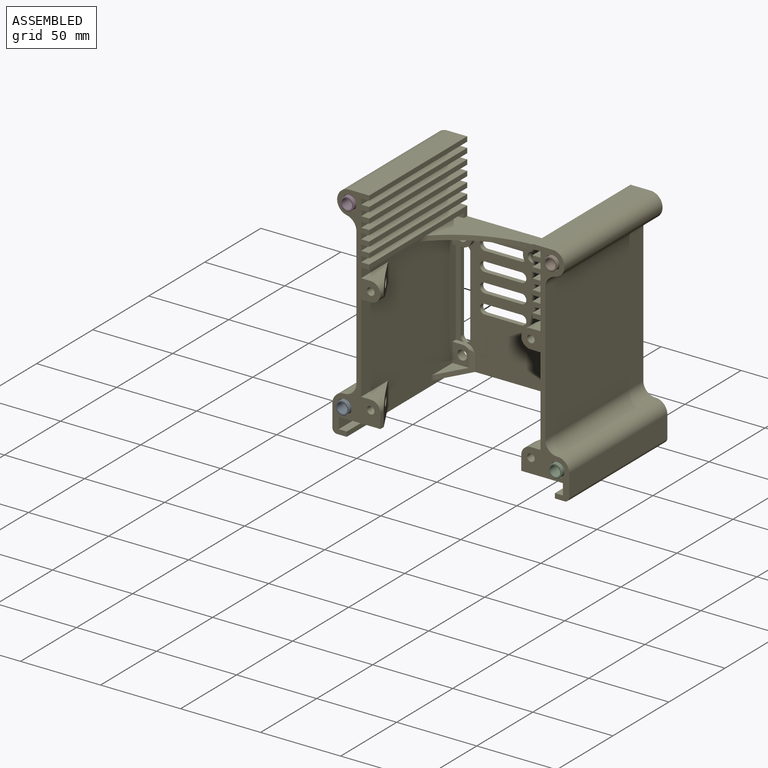
[diagram: assembled view]
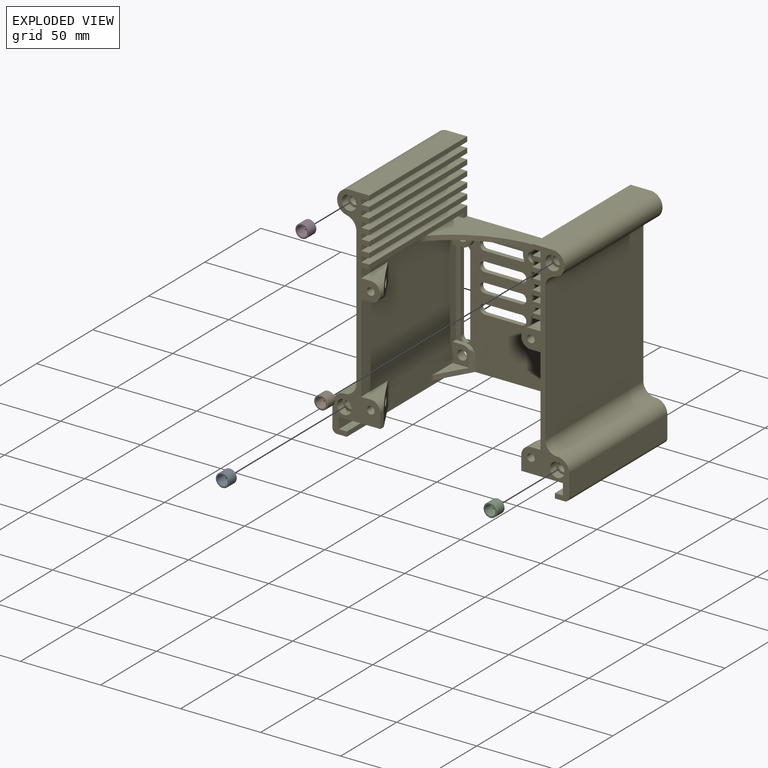
[diagram: exploded view]
GUIDED TOUR — FREECAD ASSEMBLY "Assembly_Flight-Cam-Stack"

This assembly has 5 components, labeled P0..P4 below (a component is one placed body or linked part; the same part can appear more than once), held together by 4 modeled joints. A joint is a constraint between two components; its type names the relative motion it leaves free:
  CYLINDRICAL — leaves both rotation about and translation along the listed axis free.
Axis/direction vectors are unit vectors and 'through' points are millimeter coordinates, both in the assembly's world frame.

MATES
  1. CYLINDRICAL [Cylindrical] "Joint004": P1 <-> P4, axis (0.000, -1.000, 0.000) through (63.50, -86.00, 62.50) mm
  2. CYLINDRICAL [Cylindrical] "Joint006": P2 <-> P4, axis (0.000, -1.000, 0.000) through (66.50, -86.00, -53.50) mm
  3. CYLINDRICAL [Cylindrical] "Joint008": P0 <-> P4, axis (0.000, -1.000, 0.000) through (-66.50, -86.00, -53.50) mm
  4. CYLINDRICAL [Cylindrical] "Joint010": P3 <-> P4, axis (0.000, -1.000, 0.000) through (-63.50, -86.00, 62.50) mm

ASSEMBLY ORDER
  1. P4 — the base component [order verified]
  2. P3 [order verified]
  3. P2 [order verified]
  4. P1 [order verified]
  5. P0 [order verified]
Order-tag legend:
  [order verified] — this step's position reverses a verified removal order: the component was checked to insert without passing through the ones already placed.

Of the 5 components, 5 carry a construction recipe — the FreeCAD feature program (sketches with constraints, then the solid features that consume them) that regenerates the part from scratch, quoted from this document or from the linked companion document it references; the rest are supplied as boundary geometry only. The tour below walks the components in assembly order: each is shown spotlighted twice — in the assembled view, then in the exploded view, where a leader line traces a displaced component back to its assembled socket (components that stay in place when exploded have no leader line; saturated green if recipe-attached, orange if geometry-only; every other component desaturated gray) — followed by its recipe or geometry summary and the mates that hold it.
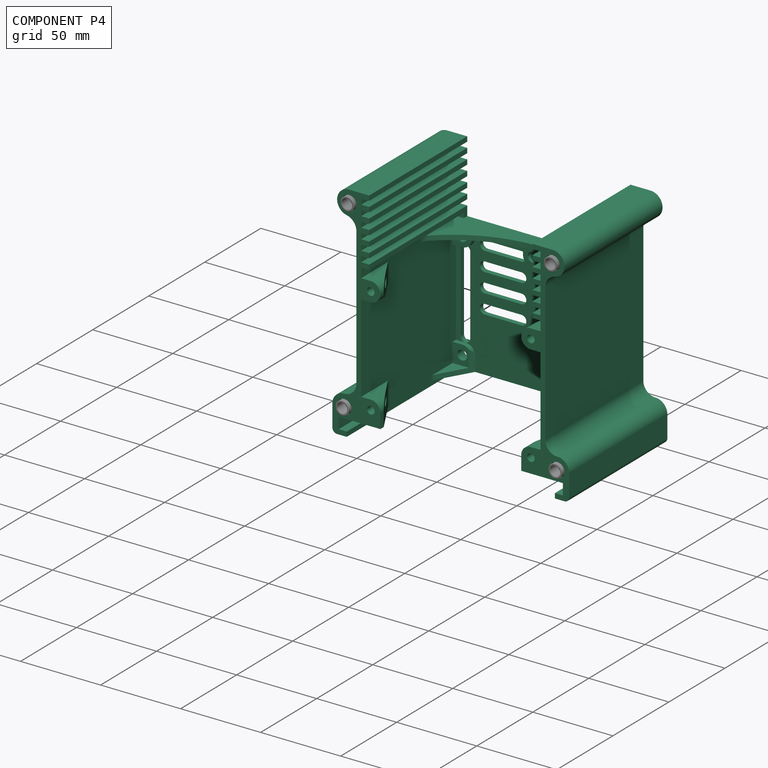
[diagram: component P4 — assembled]
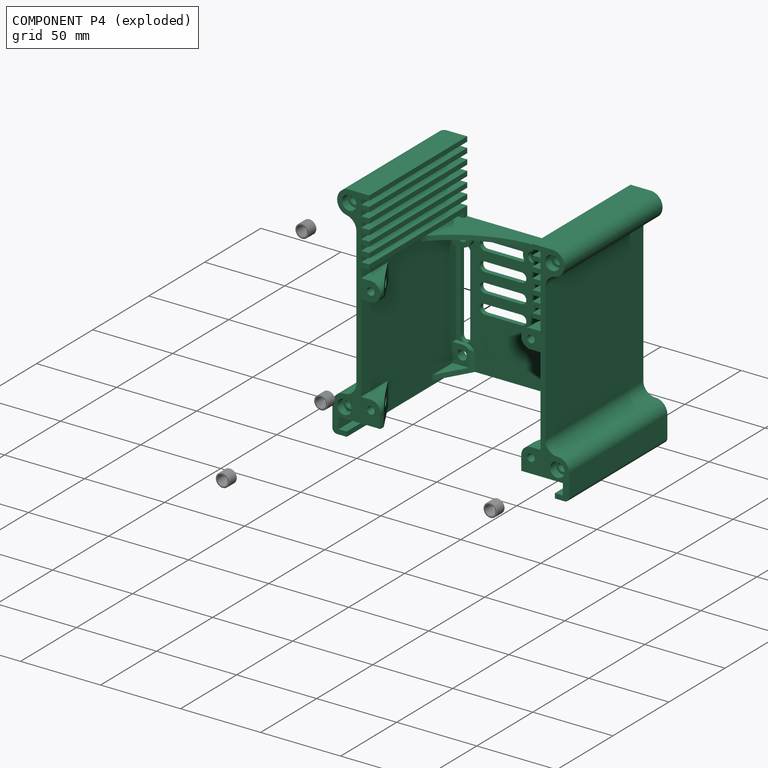
[diagram: component P4 — exploded]
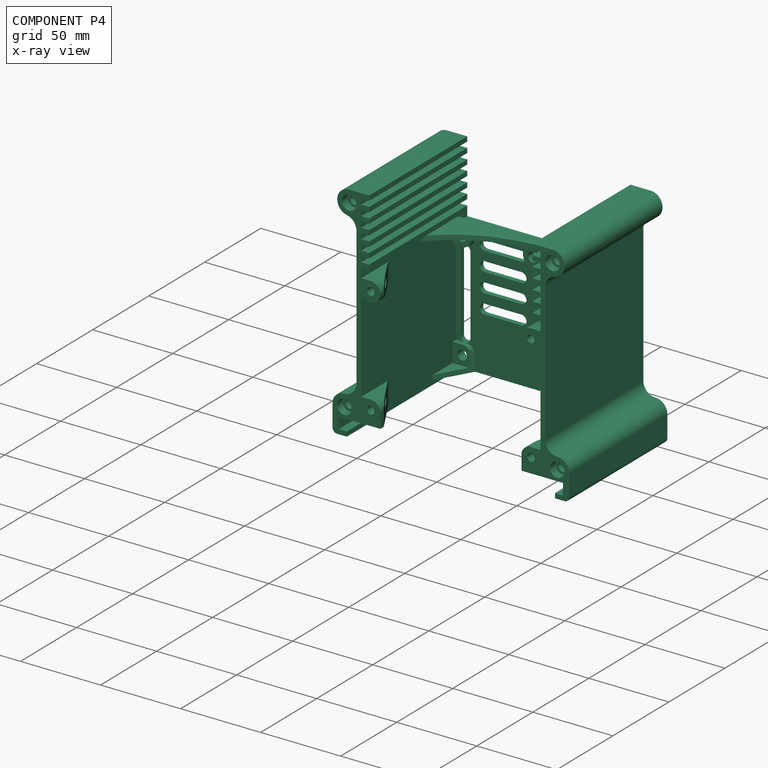
[diagram: component P4 — x-ray view]
COMPONENT P4 — recipe-attached ("Stack_Module", a linked part whose construction recipe lives in a companion FreeCAD document of the same project; that document's serialized recipe follows).
Held by: CYLINDRICAL mate "Joint004" to P1; CYLINDRICAL mate "Joint006" to P2; CYLINDRICAL mate "Joint008" to P0; CYLINDRICAL mate "Joint010" to P3.
Construction recipe (the companion document, serialized — sketch geometry with constraints, then the solid features built on it; lengths are millimeters unless a unit is written):

FCSTD DOCUMENT  (FreeCAD 1.0R39319 (Git))
Label: Stack_Module
License: All rights reserved
LicenseURL: https://en.wikipedia.org/wiki/All_rights_reserved
objects: Sketcher::SketchObject×20, PartDesign::Pocket×15, PartDesign::CoordinateSystem×7, PartDesign::Pad×6, PartDesign::Fillet×5, PartDesign::LinearPattern×2, PartDesign::Mirrored×1, PartDesign::Body×1, App::Part×1
note: 132 computed .brp shape members not serialized (recipe doc carries the construction recipe); baked Part::Feature solids carry a one-line shape summary decoded from their .brp

FEATURE [Sketcher::SketchObject] Sketch
  ArcFitTolerance = 1e-06
  AttachmentSupport = -> [XZ_Plane001]
  FullyConstrained = true
  MakeInternals = false
  MapMode = 5
  Placement = pos=(0,0,0) rot=(1,0,0;1.5708rad)
  sketch-geometry (9):
    g0: LineSegment StartX=0 StartY=-70 StartZ=0 EndX=74 EndY=-70 EndZ=0
    g1: LineSegment StartX=74 StartY=-70 StartZ=0 EndX=74 EndY=-53.5 EndZ=0
    g2: ArcOfCircle CenterX=66.5 CenterY=-53.5 CenterZ=0 NormalX=0 NormalY=0 NormalZ=1 AngleXU=0 Radius=7.5 StartAngle=0 EndAngle=1.5708
    g3: ArcOfCircle CenterX=66.5 CenterY=-38.5 CenterZ=0 NormalX=0 NormalY=0 NormalZ=1 AngleXU=0 Radius=7.5 StartAngle=3.14159 EndAngle=4.71239
    g4: LineSegment StartX=59 StartY=-38.5 StartZ=0 EndX=59 EndY=47.8031 EndZ=0
    g5: ArcOfCircle CenterX=66.5 CenterY=47.8031 CenterZ=0 NormalX=0 NormalY=0 NormalZ=1 AngleXU=0 Radius=7.5 StartAngle=1.77215 EndAngle=3.14159
    g6: ArcOfCircle CenterX=63.5 CenterY=62.5 CenterZ=0 NormalX=0 NormalY=0 NormalZ=1 AngleXU=0 Radius=7.5 StartAngle=4.91375 EndAngle=7.85398
    g7: LineSegment StartX=63.5 StartY=70 StartZ=0 EndX=0 EndY=70 EndZ=0
    g8: LineSegment StartX=0 StartY=70 StartZ=0 EndX=0 EndY=-70 EndZ=0
  constraints (26):
    c: PointOnObject(g0,g-2)
    c: Horizontal(g0)
    c: Coincident(g0,g1)
    c: Vertical(g1)
    c: Tangent(g1,g2) = -1.5708
    c: Tangent(g2,g3) = 1.5708
    c: Tangent(g3,g4) = 1.5708
    c: Tangent(g4,g5) = 1.5708
    c: Tangent(g5,g6) = 1.5708
    c: Tangent(g6,g7) = -1.5708
    c: Coincident(g7,g8)
    c: Coincident(g8,g0)
    c: Vertical(g8)
    c: Horizontal(g7)
    c: Vertical(g4)
    c: DistanceX(g0,g0) = 74
    c: Distance(g7,g0) = 140
    c: Distance(g2,g0) = 16.5
    c: Radius(g2) = 7.5
    c: Distance(g8,g4) = 59
    c: Radius(g6) = 7.5
    c: Distance(g6,g8) = 63.5
    c: Distance(g2,g8) = 66.5
    c: Distance(g-1,g0) = 70
    c: Radius(g3) = 7.5
    c: Radius(g5) = 7.5
FEATURE [PartDesign::Pad] Pad
  Direction = (0,-1,2e-16)
  Length = 87.5
  Length2 = 10
  Placement = pos=(0,0,0) rot=(1,0,0;1.5708rad)
  Profile = -> Sketch
  ReferenceAxis = -> Sketch [N_Axis]
  Refine = true
  Suppressed = false
  Type = 0
FEATURE [Sketcher::SketchObject] Sketch001
  ArcFitTolerance = 1e-06
  AttachmentSupport = -> [Pad]
  ExternalGeometry = -> [Pad]
  FullyConstrained = true
  MakeInternals = false
  MapMode = 5
  Placement = pos=(0,-87.5,0) rot=(1,0,0;1.5708rad)
  sketch-geometry (6):
    g0: LineSegment StartX=0 StartY=-60 StartZ=0 EndX=0 EndY=-70 EndZ=0
    g1: LineSegment StartX=70 StartY=-67 StartZ=0 EndX=70 EndY=-60 EndZ=0
    g2: LineSegment StartX=70 StartY=-60 StartZ=0 EndX=0 EndY=-60 EndZ=0
    g3: LineSegment StartX=70 StartY=-67 StartZ=0 EndX=65 EndY=-67 EndZ=0
    g4: LineSegment StartX=65 StartY=-67 StartZ=0 EndX=65 EndY=-70 EndZ=0
    g5: LineSegment StartX=65 StartY=-70 StartZ=0 EndX=0 EndY=-70 EndZ=0
  constraints (17):
    c: Coincident(g1,g2)
    c: Coincident(g2,g0)
    c: Vertical(g0)
    c: Vertical(g1)
    c: Horizontal(g2)
    c: Distance(g-2,g1) = 70
    c: Coincident(g1,g3)
    c: Horizontal(g3)
    c: Coincident(g3,g4)
    c: PointOnObject(g4,g-3)
    c: Coincident(g4,g5)
    c: Coincident(g5,g-3)
    c: Coincident(g0,g5)
    c: Vertical(g4)
    c: Distance(g3,g2) = 7
    c: Distance(g5,g3) = 3
    c: Distance(g-2,g4) = 65
FEATURE [PartDesign::Pocket] Pocket
  BaseFeature = -> Pad
  Direction = (0,1,-2e-16)
  Length = 5
  Length2 = 5
  Placement = pos=(0,0,0) rot=(1,0,0;1.5708rad)
  Profile = -> Sketch001
  ReferenceAxis = -> Sketch001 [N_Axis]
  Refine = true
  Suppressed = false
  Type = 1
FEATURE [Sketcher::SketchObject] Sketch002
  ArcFitTolerance = 1e-06
  AttachmentSupport = -> [Pocket]
  ExternalGeometry = -> [Pocket]
  FullyConstrained = true
  MakeInternals = false
  MapMode = 5
  Placement = pos=(0,-87.5,0) rot=(1,0,0;1.5708rad)
  sketch-geometry (4):
    g0: LineSegment StartX=0 StartY=28 StartZ=0 EndX=0 EndY=-60 EndZ=0
    g1: LineSegment StartX=0 StartY=-60 StartZ=0 EndX=56 EndY=-60 EndZ=0
    g2: LineSegment StartX=56 StartY=-60 StartZ=0 EndX=56 EndY=28 EndZ=0
    g3: LineSegment StartX=56 StartY=28 StartZ=0 EndX=0 EndY=28 EndZ=0
  constraints (12):
    c: Coincident(g0,g1)
    c: Coincident(g1,g2)
    c: Coincident(g2,g3)
    c: Coincident(g3,g0)
    c: Vertical(g0)
    c: Vertical(g2)
    c: Horizontal(g1)
    c: Horizontal(g3)
    c: PointOnObject(g0,g-2)
    c: PointOnObject(g1,g-3)
    c: Distance(g-4,g2) = 3
    c: Distance(g3,g1) = 88
FEATURE [PartDesign::Pocket] Pocket001
  BaseFeature = -> Pocket
  Direction = (0,1,-2e-16)
  Length = 0
  Length2 = 5
  Offset = -3
  Placement = pos=(0,0,0) rot=(1,0,0;1.5708rad)
  Profile = -> Sketch002
  ReferenceAxis = -> Sketch002 [N_Axis]
  Refine = true
  Suppressed = false
  Type = 3
  UpToFace = -> Pocket [Face2]
FEATURE [Sketcher::SketchObject] Sketch003
  ArcFitTolerance = 1e-06
  AttachmentSupport = -> [Pocket001]
  ExternalGeometry = -> [Pocket001]
  FullyConstrained = true
  MakeInternals = false
  MapMode = 5
  Placement = pos=(0,-87.5,0) rot=(1,0,0;1.5708rad)
  sketch-geometry (4):
    g0: LineSegment StartX=0 StartY=70 StartZ=0 EndX=0 EndY=25 EndZ=0
    g1: LineSegment StartX=0 StartY=25 StartZ=0 EndX=51 EndY=25 EndZ=0
    g2: LineSegment StartX=51 StartY=25 StartZ=0 EndX=51 EndY=70 EndZ=0
    g3: LineSegment StartX=51 StartY=70 StartZ=0 EndX=0 EndY=70 EndZ=0
  constraints (11):
    c: Coincident(g0,g1)
    c: Coincident(g1,g2)
    c: Coincident(g2,g3)
    c: Coincident(g3,g0)
    c: Vertical(g0)
    c: Vertical(g2)
    c: Horizontal(g1)
    c: Horizontal(g3)
    c: Coincident(g0,g-4)
    c: Distance(g2,g-3) = 5
    c: Distance(g1,g3) = 45
FEATURE [PartDesign::Pocket] Pocket002
  BaseFeature = -> Pocket001
  Direction = (0,1,-2e-16)
  Length = 5
  Length2 = 5
  Placement = pos=(0,0,0) rot=(1,0,0;1.5708rad)
  Profile = -> Sketch003
  ReferenceAxis = -> Sketch003 [N_Axis]
  Refine = true
  Suppressed = false
  Type = 1
FEATURE [PartDesign::Pocket] Pocket003
  BaseFeature = -> Pocket002
  Direction = (0,1,-2e-16)
  Length = 5
  Length2 = 5
  Placement = pos=(0,0,0) rot=(1,0,0;1.5708rad)
  Profile = -> Sketch003
  ReferenceAxis = -> Sketch003 [N_Axis]
  Refine = true
  Suppressed = false
  Type = 1
FEATURE [Sketcher::SketchObject] Sketch004
  ArcFitTolerance = 1e-06
  AttachmentSupport = -> [Pocket003]
  ExternalGeometry = -> [Pocket003]
  FullyConstrained = true
  MakeInternals = false
  MapMode = 5
  Placement = pos=(0,-87.5,0) rot=(1,0,0;1.5708rad)
  sketch-geometry (4):
    g0: LineSegment StartX=51 StartY=67 StartZ=0 EndX=51 EndY=63.5 EndZ=0
    g1: LineSegment StartX=51 StartY=63.5 StartZ=0 EndX=56 EndY=63.5 EndZ=0
    g2: LineSegment StartX=56 StartY=63.5 StartZ=0 EndX=56 EndY=67 EndZ=0
    g3: LineSegment StartX=56 StartY=67 StartZ=0 EndX=51 EndY=67 EndZ=0
  constraints (12):
    c: Coincident(g0,g1)
    c: Coincident(g1,g2)
    c: Coincident(g2,g3)
    c: Coincident(g3,g0)
    c: Vertical(g0)
    c: Vertical(g2)
    c: Horizontal(g1)
    c: Horizontal(g3)
    c: PointOnObject(g0,g-4)
    c: Distance(g-3,g3) = 3
    c: Distance(g3,g1) = 3.5
    c: PointOnObject(g1,g-5)
FEATURE [PartDesign::Pocket] Pocket004
  BaseFeature = -> Pocket003
  Direction = (0,1,-2e-16)
  Length = 5
  Length2 = 5
  Placement = pos=(0,0,0) rot=(1,0,0;1.5708rad)
  Profile = -> Sketch004
  ReferenceAxis = -> Sketch004 [N_Axis]
  Refine = true
  Suppressed = false
  Type = 1
FEATURE [PartDesign::LinearPattern] LinearPattern
  BaseFeature = -> Pocket004
  Direction = -> Z_Axis001
  Length = 32.5
  Mode = 1
  Occurrences = 6
  Offset = 6.5
  Originals = -> [Pocket004]
  Placement = pos=(0,0,0) rot=(1,0,0;1.5708rad)
  Refine = true
  Reversed = true
  Suppressed = false
  TransformMode = 0
FEATURE [Sketcher::SketchObject] Sketch005
  ArcFitTolerance = 1e-06
  AttachmentSupport = -> [LinearPattern]
  ExternalGeometry = -> [LinearPattern]
  FullyConstrained = true
  MakeInternals = false
  MapMode = 5
  Placement = pos=(0,1.1e-14,25) rot=(0,0,1;3.14159rad)
  sketch-geometry (4):
    g0: LineSegment StartX=0 StartY=3 StartZ=0 EndX=-56 EndY=3 EndZ=0
    g1: LineSegment StartX=-56 StartY=3 StartZ=0 EndX=-56 EndY=33 EndZ=0
    g2: LineSegment StartX=0 StartY=3 StartZ=0 EndX=-1.42e-14 EndY=9 EndZ=0
    g3: ArcOfCircle CenterX=0 CenterY=86.3333 CenterZ=0 NormalX=0 NormalY=0 NormalZ=1 AngleXU=0 Radius=77.3333 StartAngle=3.90261 EndAngle=4.71239
  constraints (13):
    c: PointOnObject(g0,g-2)
    c: Horizontal(g0)
    c: Coincident(g0,g1)
    c: Vertical(g1)
    c: Coincident(g2,g0)
    c: PointOnObject(g2,g-2)
    c: Coincident(g3,g2)
    c: Coincident(g3,g1)
    c: PointOnObject(g3,g-2)
    c: DistanceY(g2,g2) = 6
    c: DistanceY(g1,g1) = 30
    c: PointOnObject(g0,g-3)
    c: PointOnObject(g1,g-4)
FEATURE [PartDesign::Pad] Pad001
  BaseFeature = -> LinearPattern
  Direction = (0,0,1)
  Length = 3
  Length2 = 10
  Placement = pos=(0,0,0) rot=(1,0,0;1.5708rad)
  Profile = -> Sketch005
  ReferenceAxis = -> Sketch005 [N_Axis]
  Refine = true
  Reversed = true
  Suppressed = false
  Type = 0
FEATURE [Sketcher::SketchObject] Sketch006
  ArcFitTolerance = 1e-06
  AttachmentSupport = -> [Pad001]
  ExternalGeometry = -> [Pad001]
  FullyConstrained = true
  MakeInternals = false
  MapMode = 5
  Placement = pos=(0,-3,7e-16) rot=(1,0,0;1.5708rad)
  sketch-geometry (8):
    g0: LineSegment StartX=56 StartY=22 StartZ=0 EndX=44 EndY=22 EndZ=0
    g1: LineSegment StartX=44 StartY=22 StartZ=0 EndX=44 EndY=10 EndZ=0
    g2: LineSegment StartX=44 StartY=10 StartZ=0 EndX=56 EndY=10 EndZ=0
    g3: LineSegment StartX=56 StartY=10 StartZ=0 EndX=56 EndY=22 EndZ=0
    g4: LineSegment StartX=56 StartY=-45 StartZ=0 EndX=44 EndY=-45 EndZ=0
    g5: LineSegment StartX=44 StartY=-45 StartZ=0 EndX=44 EndY=-57 EndZ=0
    g6: LineSegment StartX=44 StartY=-57 StartZ=0 EndX=56 EndY=-57 EndZ=0
    g7: LineSegment StartX=56 StartY=-57 StartZ=0 EndX=56 EndY=-45 EndZ=0
  constraints (23):
    c: Coincident(g0,g1)
    c: Coincident(g1,g2)
    c: Coincident(g2,g3)
    c: Coincident(g3,g0)
    c: Horizontal(g0)
    c: Horizontal(g2)
    c: Vertical(g1)
    c: Vertical(g3)
    c: Coincident(g4,g5)
    c: Coincident(g5,g6)
    c: Coincident(g6,g7)
    c: Coincident(g7,g4)
    c: Horizontal(g4)
    c: Horizontal(g6)
    c: Vertical(g5)
    c: Vertical(g7)
    c: DistanceX(g0,g0) = 12
    c: Distance(g2,g0) = 12
    c: Distance(g6,g4) = 12
    c: Distance(g7,g5) = 12
    c: Coincident(g0,g-5)
    c: PointOnObject(g4,g-3)
    c: Distance(g-4,g6) = 3
FEATURE [PartDesign::Pad] Pad002
  BaseFeature = -> Pad001
  Direction = (0,-1,2e-16)
  Length = 3
  Length2 = 10
  Placement = pos=(0,0,0) rot=(1,0,0;1.5708rad)
  Profile = -> Sketch006
  ReferenceAxis = -> Sketch006 [N_Axis]
  Refine = true
  Suppressed = false
  Type = 0
FEATURE [PartDesign::Fillet] Fillet
  Base = -> Pad002 [Edge152,Edge151]
  BaseFeature = -> Pad002
  Placement = pos=(0,0,0) rot=(1,0,0;1.5708rad)
  Radius = 6
  Refine = true
  SupportTransform = false
  Suppressed = false
  UseAllEdges = false
FEATURE [Sketcher::SketchObject] Sketch007
  ArcFitTolerance = 1e-06
  AttachmentSupport = -> [Fillet]
  ExternalGeometry = -> [Fillet]
  FullyConstrained = true
  MakeInternals = false
  MapMode = 5
  Placement = pos=(0,-87.5,0) rot=(1,0,0;1.5708rad)
  sketch-geometry (8):
    g0: LineSegment StartX=56 StartY=22 StartZ=0 EndX=56 EndY=10 EndZ=0
    g1: LineSegment StartX=56 StartY=10 StartZ=0 EndX=50 EndY=10 EndZ=0
    g2: ArcOfCircle CenterX=50 CenterY=16 CenterZ=0 NormalX=0 NormalY=0 NormalZ=1 AngleXU=0 Radius=6 StartAngle=1.5708 EndAngle=4.71239
    g3: LineSegment StartX=50 StartY=22 StartZ=0 EndX=56 EndY=22 EndZ=0
    g4: LineSegment StartX=56 StartY=-57 StartZ=0 EndX=56 EndY=-45 EndZ=0
    g5: LineSegment StartX=56 StartY=-45 StartZ=0 EndX=44 EndY=-45 EndZ=0
    g6: LineSegment StartX=44 StartY=-45 StartZ=0 EndX=44 EndY=-57 EndZ=0
    g7: LineSegment StartX=44 StartY=-57 StartZ=0 EndX=56 EndY=-57 EndZ=0
  constraints (17):
    c: Coincident(g0,g1)
    c: Horizontal(g1)
    c: Tangent(g1,g2) = 1.5708
    c: Tangent(g2,g3) = 1.5708
    c: Coincident(g3,g0)
    c: Coincident(g0,g-3)
    c: Coincident(g0,g-5)
    c: Coincident(g-6,g2)
    c: Coincident(g4,g5)
    c: Coincident(g5,g6)
    c: Coincident(g6,g7)
    c: Coincident(g7,g4)
    c: Vertical(g6)
    c: Horizontal(g5)
    c: Coincident(g-9,g4)
    c: Coincident(g6,g-8)
    c: Coincident(g4,g-7)
FEATURE [PartDesign::Pad] Pad003
  BaseFeature = -> Fillet
  Direction = (0,-1,2e-16)
  Length = 25
  Length2 = 10
  Placement = pos=(0,0,0) rot=(1,0,0;1.5708rad)
  Profile = -> Sketch007
  ReferenceAxis = -> Sketch007 [N_Axis]
  Refine = true
  Reversed = true
  Suppressed = false
  Type = 0
FEATURE [Sketcher::SketchObject] Sketch008
  ArcFitTolerance = 1e-06
  AttachmentSupport = -> [Pad003]
  ExternalGeometry = -> [Pad003]
  FullyConstrained = true
  MakeInternals = false
  MapMode = 5
  Placement = pos=(0,-2.64e-14,-60) rot=(1,0,0;3.14159rad)
  sketch-geometry (7):
    g0: LineSegment StartX=56 StartY=87.5 StartZ=0 EndX=44 EndY=87.5 EndZ=0
    g1: LineSegment StartX=44 StartY=87.5 StartZ=0 EndX=44 EndY=84.5 EndZ=0
    g2: LineSegment StartX=44 StartY=84.5 StartZ=0 EndX=56 EndY=63.7154 EndZ=0
    g3: LineSegment StartX=56 StartY=63.7154 StartZ=0 EndX=56 EndY=87.5 EndZ=0
    g4: LineSegment StartX=56 StartY=23.7846 StartZ=0 EndX=44 EndY=3 EndZ=0
    g5: LineSegment StartX=44 StartY=3 StartZ=0 EndX=56 EndY=3 EndZ=0
    g6: LineSegment StartX=56 StartY=3 StartZ=0 EndX=56 EndY=23.7846 EndZ=0
  constraints (18):
    c: Coincident(g-5,g0)
    c: Coincident(g0,g-5)
    c: Coincident(g0,g1)
    c: PointOnObject(g1,g-4)
    c: Coincident(g1,g2)
    c: PointOnObject(g2,g-3)
    c: Coincident(g2,g3)
    c: Coincident(g3,g0)
    c: PointOnObject(g4,g-3)
    c: PointOnObject(g4,g-6)
    c: Coincident(g4,g5)
    c: Coincident(g5,g-6)
    c: Coincident(g5,g6)
    c: Coincident(g6,g4)
    c: Angle(g4,g6) = 0.523599
    c: Angle(g3,g2) = 0.523599
    c: DistanceY(g1,g1) = 3
    c: PointOnObject(g4,g-4)
FEATURE [PartDesign::Pad] Pad004
  BaseFeature = -> Pad003
  Direction = (0,0,-1)
  Length = 10
  Length2 = 10
  Placement = pos=(0,0,0) rot=(1,0,0;1.5708rad)
  Profile = -> Sketch008
  ReferenceAxis = -> Sketch008 [N_Axis]
  Refine = true
  Suppressed = false
  Type = 3
  UpToFace = -> Pad003 [Face14]
FEATURE [Sketcher::SketchObject] Sketch009
  ArcFitTolerance = 1e-06
  AttachmentSupport = -> [Pad004]
  ExternalGeometry = -> [Pad004]
  FullyConstrained = true
  MakeInternals = false
  MapMode = 5
  Placement = pos=(0,-2.51e-14,-57) rot=(1,0,0;3.14159rad)
  sketch-geometry (3):
    g0: LineSegment StartX=44 StartY=3 StartZ=0 EndX=44 EndY=6 EndZ=0
    g1: LineSegment StartX=44 StartY=6 StartZ=0 EndX=45.7321 EndY=6 EndZ=0
    g2: LineSegment StartX=45.7321 StartY=6 StartZ=0 EndX=44 EndY=3 EndZ=0
  constraints (6):
    c: Coincident(g-5,g0)
    c: Coincident(g0,g-4)
    c: Coincident(g0,g1)
    c: Coincident(g1,g-3)
    c: Coincident(g1,g2)
    c: Coincident(g2,g0)
FEATURE [PartDesign::Pocket] Pocket005
  BaseFeature = -> Pad004
  Direction = (0,0,1)
  Length = 0
  Length2 = 5
  Placement = pos=(0,0,0) rot=(1,0,0;1.5708rad)
  Profile = -> Sketch009
  ReferenceAxis = -> Sketch009 [N_Axis]
  Refine = true
  Suppressed = false
  Type = 3
  UpToFace = -> Pad004 [Face3]
FEATURE [Sketcher::SketchObject] Sketch010
  ArcFitTolerance = 1e-06
  AttachmentSupport = -> [Pocket005]
  ExternalGeometry = -> [Pocket005]
  FullyConstrained = true
  MakeInternals = false
  MapMode = 5
  Placement = pos=(0,-2.51e-14,-57) rot=(1,0,0;3.14159rad)
  sketch-geometry (4):
    g0: LineSegment StartX=44 StartY=84.5 StartZ=0 EndX=44 EndY=62.5 EndZ=0
    g1: LineSegment StartX=44 StartY=62.5 StartZ=0 EndX=56 EndY=62.5 EndZ=0
    g2: LineSegment StartX=56 StartY=62.5 StartZ=0 EndX=56 EndY=63.7154 EndZ=0
    g3: LineSegment StartX=56 StartY=63.7154 StartZ=0 EndX=44 EndY=84.5 EndZ=0
  constraints (8):
    c: Coincident(g-6,g0)
    c: Coincident(g0,g-4)
    c: Coincident(g0,g1)
    c: Coincident(g1,g-4)
    c: Coincident(g1,g2)
    c: Coincident(g2,g-6)
    c: Coincident(g2,g3)
    c: Coincident(g3,g0)
FEATURE [PartDesign::Pocket] Pocket006
  BaseFeature = -> Pocket005
  Direction = (0,0,1)
  Length = 0
  Length2 = 5
  Placement = pos=(0,0,0) rot=(1,0,0;1.5708rad)
  Profile = -> Sketch010
  ReferenceAxis = -> Sketch010 [N_Axis]
  Refine = true
  Suppressed = false
  Type = 3
  UpToFace = -> Pocket005 [Face19]
FEATURE [PartDesign::Fillet] Fillet001
  Base = -> Pocket006 [Edge105]
  BaseFeature = -> Pocket006
  Placement = pos=(0,0,0) rot=(1,0,0;1.5708rad)
  Radius = 6
  Refine = true
  SupportTransform = false
  Suppressed = false
  UseAllEdges = false
FEATURE [PartDesign::Fillet] Fillet002
  Base = -> Fillet001 [Edge54,Edge52,Edge67,Edge59]
  BaseFeature = -> Fillet001
  Placement = pos=(0,0,0) rot=(1,0,0;1.5708rad)
  Radius = 6
  Refine = true
  SupportTransform = false
  Suppressed = false
  UseAllEdges = false
FEATURE [Sketcher::SketchObject] Sketch011
  ArcFitTolerance = 1e-06
  AttachmentSupport = -> [Fillet002]
  ExternalGeometry = -> [Fillet002]
  FullyConstrained = true
  MakeInternals = false
  MapMode = 5
  Placement = pos=(0,-3,7e-16) rot=(1,0,0;1.5708rad)
  sketch-geometry (4):
    g0: LineSegment StartX=1.42e-14 StartY=22 StartZ=0 EndX=1.42e-14 EndY=10 EndZ=0
    g1: LineSegment StartX=1.42e-14 StartY=10 StartZ=0 EndX=12 EndY=10 EndZ=0
    g2: LineSegment StartX=12 StartY=10 StartZ=0 EndX=12 EndY=22 EndZ=0
    g3: LineSegment StartX=12 StartY=22 StartZ=0 EndX=1.42e-14 EndY=22 EndZ=0
  constraints (11):
    c: Coincident(g0,g1)
    c: Coincident(g1,g2)
    c: Coincident(g2,g3)
    c: Coincident(g3,g0)
    c: Vertical(g0)
    c: Vertical(g2)
    c: Horizontal(g1)
    c: Horizontal(g3)
    c: Coincident(g0,g-3)
    c: Distance(g0,g2) = 12
    c: PointOnObject(g1,g-4)
FEATURE [PartDesign::Pad] Pad005
  BaseFeature = -> Fillet002
  Direction = (0,-1,2e-16)
  Length = 3
  Length2 = 10
  Placement = pos=(0,0,0) rot=(1,0,0;1.5708rad)
  Profile = -> Sketch011
  ReferenceAxis = -> Sketch011 [N_Axis]
  Refine = true
  Suppressed = false
  Type = 0
FEATURE [PartDesign::Fillet] Fillet003
  Base = -> Pad005 [Edge204]
  BaseFeature = -> Pad005
  Placement = pos=(0,0,0) rot=(1,0,0;1.5708rad)
  Radius = 6
  Refine = true
  SupportTransform = false
  Suppressed = false
  UseAllEdges = false
FEATURE [Sketcher::SketchObject] Sketch012
  ArcFitTolerance = 1e-06
  AttachmentSupport = -> [Fillet003]
  ExternalGeometry = -> [Fillet003]
  FullyConstrained = true
  MakeInternals = false
  MapMode = 5
  Placement = pos=(0,-3,7e-16) rot=(1,0,0;1.5708rad)
  sketch-geometry (5):
    g0: ArcOfCircle CenterX=50 CenterY=7 CenterZ=0 NormalX=0 NormalY=0 NormalZ=1 AngleXU=0 Radius=3 StartAngle=2e-16 EndAngle=3.14159
    g1: ArcOfCircle CenterX=50 CenterY=-42 CenterZ=0 NormalX=0 NormalY=0 NormalZ=1 AngleXU=0 Radius=3 StartAngle=3.14159 EndAngle=6.28319
    g2: LineSegment StartX=53 StartY=7 StartZ=0 EndX=53 EndY=-42 EndZ=0
    g3: LineSegment StartX=47 StartY=7 StartZ=0 EndX=47 EndY=-42 EndZ=0
    g4: LineSegment [constr] StartX=50 StartY=7 StartZ=0 EndX=50 EndY=-42 EndZ=0
  constraints (12):
    c: Tangent(g0,g2) = 1.5708
    c: Tangent(g0,g3) = -1.5708
    c: Tangent(g1,g2) = 1.5708
    c: Tangent(g1,g3) = -1.5708
    c: Equal(g0,g1)
    c: Vertical(g3)
    c: Distance(g2,g3) = 6
    c: Coincident(g4,g0)
    c: Coincident(g4,g1)
    c: PointOnObject(g-3,g4)
    c: Tangent(g0,g-5)
    c: Tangent(g1,g-6)
FEATURE [PartDesign::Pocket] Pocket007
  BaseFeature = -> Fillet003
  Direction = (0,1,-2e-16)
  Length = 5
  Length2 = 5
  Placement = pos=(0,0,0) rot=(1,0,0;1.5708rad)
  Profile = -> Sketch012
  ReferenceAxis = -> Sketch012 [N_Axis]
  Refine = true
  Suppressed = false
  Type = 1
FEATURE [Sketcher::SketchObject] Sketch013
  ArcFitTolerance = 1e-06
  AttachmentSupport = -> [Pocket007]
  ExternalGeometry = -> [Pocket007]
  FullyConstrained = true
  MakeInternals = false
  MapMode = 5
  Placement = pos=(0,-3,7e-16) rot=(1,0,0;1.5708rad)
  sketch-geometry (4):
    g0: ArcOfCircle CenterX=0 CenterY=4 CenterZ=0 NormalX=0 NormalY=0 NormalZ=1 AngleXU=0 Radius=3 StartAngle=7.15e-14 EndAngle=3.14159
    g1: ArcOfCircle CenterX=1.8053e-12 CenterY=-36 CenterZ=0 NormalX=0 NormalY=0 NormalZ=1 AngleXU=0 Radius=3 StartAngle=3.14159 EndAngle=6.28319
    g2: LineSegment StartX=3 StartY=4 StartZ=0 EndX=3 EndY=-36 EndZ=0
    g3: LineSegment StartX=-3 StartY=4 StartZ=0 EndX=-3 EndY=-36 EndZ=0
  constraints (10):
    c: Tangent(g0,g2) = 1.5708
    c: Tangent(g0,g3) = -1.5708
    c: Tangent(g1,g2) = 1.5708
    c: Tangent(g1,g3) = -1.5708
    c: Equal(g0,g1)
    c: Vertical(g3)
    c: PointOnObject(g0,g-2)
    c: Distance(g2,g3) = 6
    c: Distance(g0,g-3) = 21
    c: Distance(g1,g-4) = 24
FEATURE [PartDesign::Pocket] Pocket008
  BaseFeature = -> Pocket007
  Direction = (0,1,-2e-16)
  Length = 5
  Length2 = 5
  Placement = pos=(0,0,0) rot=(1,0,0;1.5708rad)
  Profile = -> Sketch013
  ReferenceAxis = -> Sketch013 [N_Axis]
  Refine = true
  Suppressed = false
  Type = 0
FEATURE [Sketcher::SketchObject] Sketch014
  ArcFitTolerance = 1e-06
  AttachmentSupport = -> [Pocket008]
  ExternalGeometry = -> [Pocket008]
  FullyConstrained = true
  MakeInternals = false
  MapMode = 5
  Placement = pos=(0,-3,7e-16) rot=(1,0,0;1.5708rad)
  sketch-geometry (4):
    g0: ArcOfCircle CenterX=15 CenterY=13 CenterZ=0 NormalX=0 NormalY=0 NormalZ=1 AngleXU=0 Radius=3 StartAngle=1.5708 EndAngle=4.71239
    g1: ArcOfCircle CenterX=38 CenterY=13 CenterZ=0 NormalX=0 NormalY=0 NormalZ=1 AngleXU=0 Radius=3 StartAngle=4.71239 EndAngle=7.85398
    g2: LineSegment StartX=15 StartY=16 StartZ=0 EndX=38 EndY=16 EndZ=0
    g3: LineSegment StartX=15 StartY=10 StartZ=0 EndX=38 EndY=10 EndZ=0
  constraints (10):
    c: Tangent(g0,g2) = 1.5708
    c: Tangent(g0,g3) = -1.5708
    c: Tangent(g1,g2) = 1.5708
    c: Tangent(g1,g3) = -1.5708
    c: Equal(g0,g1)
    c: Horizontal(g3)
    c: Distance(g3,g2) = 6
    c: Distance(g-5,g2) = 9
    c: Distance(g0,g-3) = 9
    c: Distance(g1,g-4) = 6
FEATURE [PartDesign::Pocket] Pocket009
  BaseFeature = -> Pocket008
  Direction = (0,1,-2e-16)
  Length = 5
  Length2 = 5
  Placement = pos=(0,0,0) rot=(1,0,0;1.5708rad)
  Profile = -> Sketch014
  ReferenceAxis = -> Sketch014 [N_Axis]
  Refine = true
  Suppressed = false
  Type = 1
FEATURE [PartDesign::LinearPattern] LinearPattern001
  BaseFeature = -> Pocket009
  Direction = -> Z_Axis001
  Length = 36
  Mode = 1
  Occurrences = 4
  Offset = 12
  Originals = -> [Pocket009]
  Placement = pos=(0,0,0) rot=(1,0,0;1.5708rad)
  Refine = true
  Reversed = true
  Suppressed = false
  TransformMode = 0
FEATURE [Sketcher::SketchObject] Sketch015
  ArcFitTolerance = 1e-06
  AttachmentSupport = -> [LinearPattern001]
  ExternalGeometry = -> [LinearPattern001]
  FullyConstrained = true
  MakeInternals = false
  MapMode = 5
  Placement = pos=(0,-6,1.4e-15) rot=(1,0,0;1.5708rad)
  sketch-geometry (3):
    g0: Circle CenterX=6 CenterY=16 CenterZ=0 NormalX=0 NormalY=0 NormalZ=1 AngleXU=0 Radius=3
    g1: Circle CenterX=50 CenterY=16 CenterZ=0 NormalX=0 NormalY=0 NormalZ=1 AngleXU=0 Radius=3
    g2: Circle CenterX=50 CenterY=-51 CenterZ=0 NormalX=0 NormalY=0 NormalZ=1 AngleXU=0 Radius=3
  constraints (6):
    c: Coincident(g0,g-3)
    c: Coincident(g1,g-4)
    c: Coincident(g2,g-5)
    c: Diameter(g0) = 6
    c: Diameter(g1) = 6
    c: Diameter(g2) = 6
FEATURE [PartDesign::Pocket] Pocket010
  BaseFeature = -> LinearPattern001
  Direction = (0,1,-2e-16)
  Length = 5
  Length2 = 5
  Placement = pos=(0,0,0) rot=(1,0,0;1.5708rad)
  Profile = -> Sketch015
  ReferenceAxis = -> Sketch015 [N_Axis]
  Refine = true
  Suppressed = false
  Type = 1
FEATURE [Sketcher::SketchObject] Sketch016
  ArcFitTolerance = 1e-06
  AttachmentSupport = -> [Pocket010]
  ExternalGeometry = -> [Pocket010]
  FullyConstrained = true
  MakeInternals = false
  MapMode = 5
  Placement = pos=(0,-87.5,3.76e-14) rot=(1,0,0;1.5708rad)
  sketch-geometry (2):
    g0: Circle CenterX=50 CenterY=16 CenterZ=0 NormalX=0 NormalY=0 NormalZ=1 AngleXU=0 Radius=2.35
    g1: Circle CenterX=50 CenterY=-51 CenterZ=0 NormalX=0 NormalY=0 NormalZ=1 AngleXU=0 Radius=2.35
  constraints (4):
    c: Coincident(g0,g-3)
    c: Coincident(g1,g-4)
    c: Diameter(g0) = 4.7
    c: Diameter(g1) = 4.7
FEATURE [PartDesign::Pocket] Pocket011
  BaseFeature = -> Pocket010
  Direction = (0,1,-2e-16)
  Length = 5
  Length2 = 5
  Placement = pos=(0,0,0) rot=(1,0,0;1.5708rad)
  Profile = -> Sketch016
  ReferenceAxis = -> Sketch016 [N_Axis]
  Refine = true
  Suppressed = false
  Type = 1
FEATURE [PartDesign::Fillet] Fillet004
  Base = -> Pocket011 [Edge263]
  BaseFeature = -> Pocket011
  Placement = pos=(0,0,0) rot=(1,0,0;1.5708rad)
  Radius = 3
  Refine = true
  SupportTransform = false
  Suppressed = false
  UseAllEdges = false
FEATURE [Sketcher::SketchObject] Sketch017
  ArcFitTolerance = 1e-06
  AttachmentSupport = -> [Fillet004]
  ExternalGeometry = -> [Fillet004]
  FullyConstrained = true
  MakeInternals = false
  MapMode = 5
  Placement = pos=(0,-87.5,3.76e-14) rot=(1,0,0;1.5708rad)
  sketch-geometry (2):
    g0: Circle CenterX=63.5 CenterY=62.5 CenterZ=0 NormalX=0 NormalY=0 NormalZ=1 AngleXU=0 Radius=3
    g1: Circle CenterX=66.5 CenterY=-53.5 CenterZ=0 NormalX=0 NormalY=0 NormalZ=1 AngleXU=0 Radius=3
  constraints (4):
    c: Coincident(g0,g-3)
    c: Coincident(g1,g-4)
    c: Diameter(g0) = 6
    c: Diameter(g1) = 6
FEATURE [PartDesign::Pocket] Pocket012
  BaseFeature = -> Fillet004
  Direction = (0,1,-2e-16)
  Length = 5
  Length2 = 5
  Placement = pos=(0,0,0) rot=(1,0,0;1.5708rad)
  Profile = -> Sketch017
  ReferenceAxis = -> Sketch017 [N_Axis]
  Refine = true
  Suppressed = false
  Type = 1
FEATURE [Sketcher::SketchObject] Sketch018
  ArcFitTolerance = 1e-06
  AttachmentSupport = -> [Pocket012]
  ExternalGeometry = -> [Pocket012]
  FullyConstrained = true
  MakeInternals = false
  MapMode = 5
  Placement = pos=(0,-87.5,3.76e-14) rot=(1,0,0;1.5708rad)
  sketch-geometry (2):
    g0: Circle CenterX=66.5 CenterY=-53.5 CenterZ=0 NormalX=0 NormalY=0 NormalZ=1 AngleXU=0 Radius=4.5
    g1: Circle CenterX=63.5 CenterY=62.5 CenterZ=0 NormalX=0 NormalY=0 NormalZ=1 AngleXU=0 Radius=4.5
  constraints (4):
    c: Coincident(g0,g-4)
    c: Coincident(g1,g-3)
    c: Diameter(g1) = 9
    c: Diameter(g0) = 9
FEATURE [PartDesign::Pocket] Pocket013
  BaseFeature = -> Pocket012
  Direction = (0,1,-2e-16)
  Length = 5
  Length2 = 5
  Placement = pos=(0,0,0) rot=(1,0,0;1.5708rad)
  Profile = -> Sketch018
  ReferenceAxis = -> Sketch018 [N_Axis]
  Refine = true
  Suppressed = false
  Type = 0
FEATURE [Sketcher::SketchObject] Sketch019
  ArcFitTolerance = 1e-06
  AttachmentSupport = -> [Pocket013]
  ExternalGeometry = -> [Pocket013]
  FullyConstrained = true
  MakeInternals = false
  MapMode = 5
  Placement = pos=(0,-3e-16,0) rot=(-1,0,0;1.5708rad)
  sketch-geometry (2):
    g0: Circle CenterX=66.5 CenterY=53.5 CenterZ=0 NormalX=0 NormalY=0 NormalZ=1 AngleXU=0 Radius=4.5
    g1: Circle CenterX=63.5 CenterY=-62.5 CenterZ=0 NormalX=0 NormalY=0 NormalZ=1 AngleXU=0 Radius=4.5
  constraints (4):
    c: Coincident(g0,g-3)
    c: Coincident(g1,g-4)
    c: Diameter(g0) = 9
    c: Diameter(g1) = 9
FEATURE [PartDesign::Pocket] Pocket014
  BaseFeature = -> Pocket013
  Direction = (0,-1,-2e-16)
  Length = 5
  Length2 = 5
  Placement = pos=(0,0,0) rot=(1,0,0;1.5708rad)
  Profile = -> Sketch019
  ReferenceAxis = -> Sketch019 [N_Axis]
  Refine = true
  Suppressed = false
  Type = 0
FEATURE [PartDesign::Mirrored] Mirrored
  BaseFeature = -> Pocket014
  MirrorPlane = -> YZ_Plane001
  Placement = pos=(0,0,0) rot=(1,0,0;1.5708rad)
  Refine = true
  Suppressed = false
  TransformMode = 1
FEATURE [PartDesign::Body] Body  label="Stack_Module001"
  AllowCompound = false
  Group = -> [Sketch,Pad,Sketch001,Pocket,Sketch002,Pocket001,Sketch003,Pocket002,Pocket003,Sketch004,Pocket004,LinearPattern,Sketch005,Pad001,Sketch006,Pad002,Fillet,Sketch007,Pad003,Sketch008,Pad004,Sketch009,Pocket005,Sketch010,Pocket006,Fillet001,Fillet002,Sketch011,Pad005,Fillet003,Sketch012,Pocket007,Sketch013,Pocket008,Sketch014,Pocket009,LinearPattern001,Sketch015,Pocket010,Sketch016,Pocket011,+8 more]
  Origin = -> Origin001
  Tip = -> Mirrored
FEATURE [PartDesign::CoordinateSystem] stack_att_up
  AttacherType = Attacher::AttachEngine3D
  AttachmentSupport = -> [Mirrored]
  MapMode = 11
  Placement = pos=(-63.5,-87.5,62.5) rot=(0.57735,0.57735,0.57735;4.18879rad)
FEATURE [PartDesign::CoordinateSystem] stack_att_low
  AttacherType = Attacher::AttachEngine3D
  AttachmentSupport = -> [Mirrored]
  MapMode = 11
  Placement = pos=(-63.5,1.41e-14,62.5) rot=(0.57735,0.57735,-0.57735;2.0944rad)
FEATURE [PartDesign::CoordinateSystem] spacer_att_1
  AttacherType = Attacher::AttachEngine3D
  AttachmentSupport = -> [Mirrored]
  MapMode = 11
  Placement = pos=(66.5,-82.5,-53.5) rot=(0.57735,-0.57735,0.57735;2.0944rad)
FEATURE [PartDesign::CoordinateSystem] spacer_att_2
  AttacherType = Attacher::AttachEngine3D
  AttachmentSupport = -> [Mirrored]
  MapMode = 11
  Placement = pos=(63.5,-82.5,62.5) rot=(0.57735,-0.57735,0.57735;2.0944rad)
FEATURE [PartDesign::CoordinateSystem] spacer_att_3
  AttacherType = Attacher::AttachEngine3D
  AttachmentSupport = -> [Mirrored]
  MapMode = 11
  Placement = pos=(-66.5,-82.5,-53.5) rot=(0.57735,0.57735,0.57735;4.18879rad)
FEATURE [PartDesign::CoordinateSystem] spacer_att_4
  AttacherType = Attacher::AttachEngine3D
  AttachmentSupport = -> [Mirrored]
  MapMode = 11
  Placement = pos=(-63.5,-82.5,62.5) rot=(0.57735,0.57735,0.57735;4.18879rad)
FEATURE [PartDesign::CoordinateSystem] screen_ref  label="screen_reference"
  AttacherType = Attacher::AttachEngine3D
  AttachmentOffset = pos=(4,-50,0) rot=(0,0,1;0rad)
  AttachmentSupport = -> [Mirrored]
  MapMode = 45
  Placement = pos=(-50,-3,-19.9856) rot=(0.57735,0.57735,0.57735;4.18879rad)
FEATURE [App::Part] Part  label="Stack_Module"
  Group = -> [Body,stack_att_up,stack_att_low,spacer_att_1,spacer_att_2,spacer_att_3,spacer_att_4,screen_ref]
  Origin = -> Origin
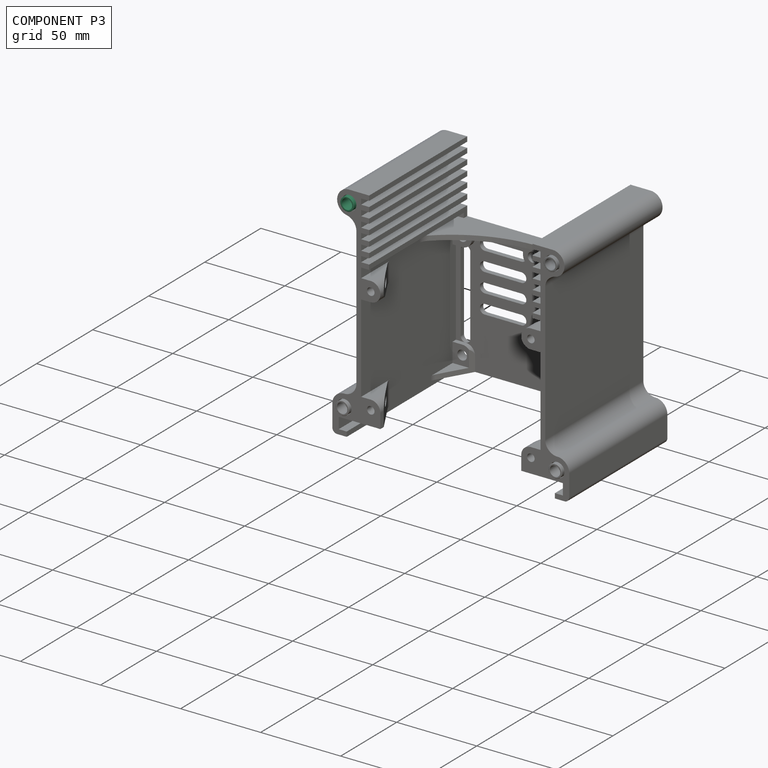
[diagram: component P3 — assembled]
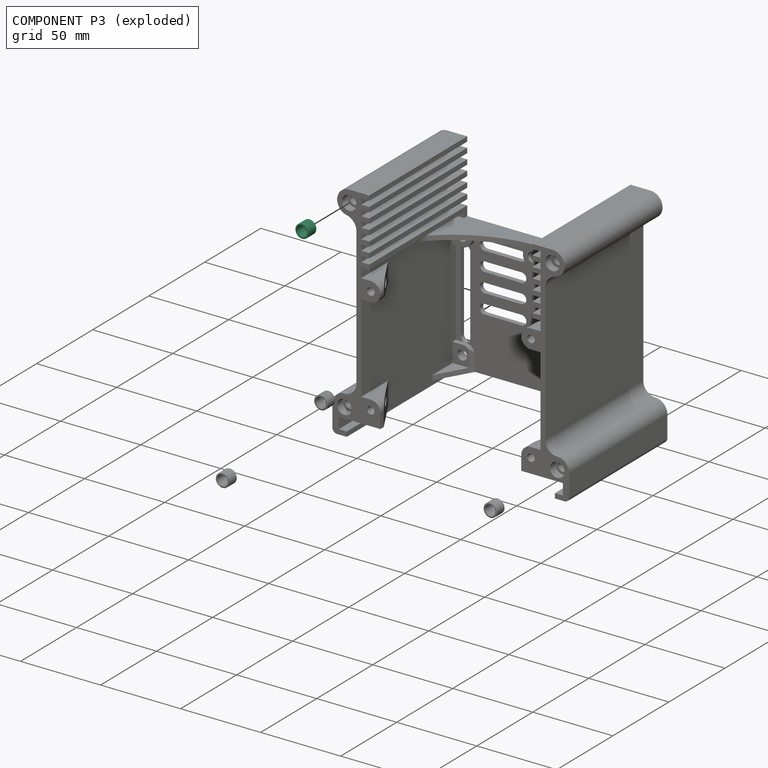
[diagram: component P3 — exploded]
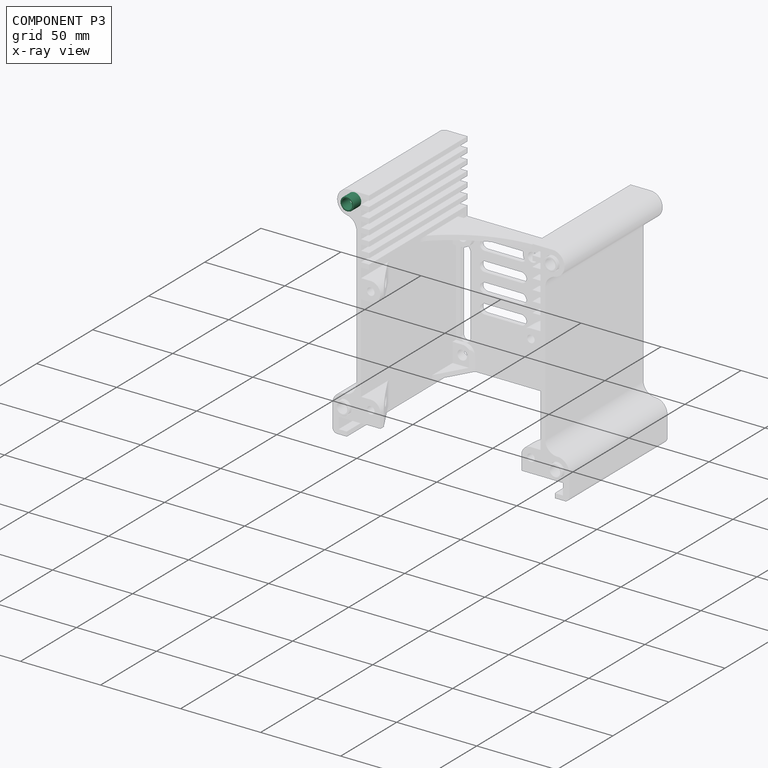
[diagram: component P3 — x-ray view]
COMPONENT P3 — same part as P0; its construction recipe is shown at P0.
Held by: CYLINDRICAL mate "Joint010" to P4.
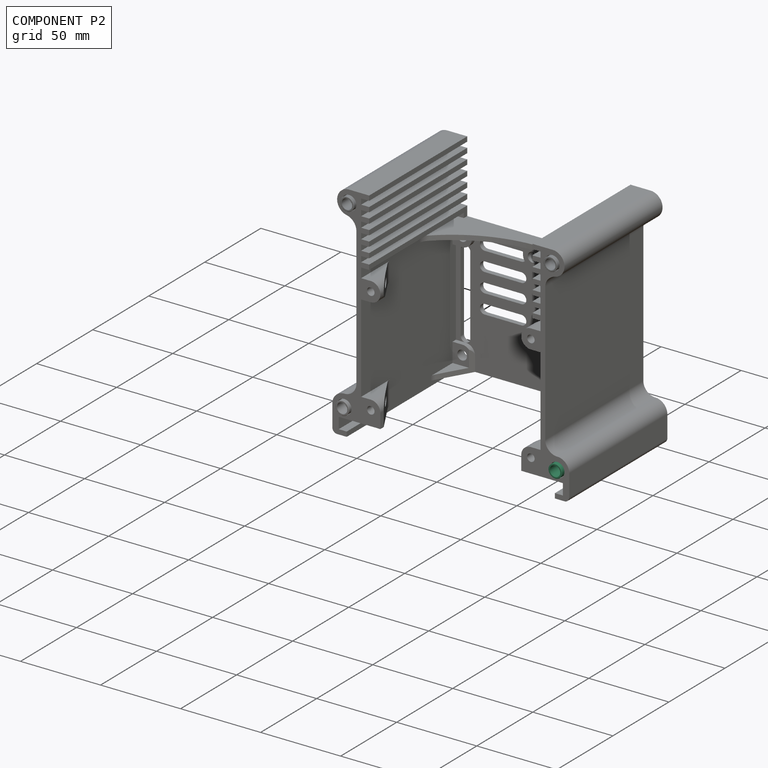
[diagram: component P2 — assembled]
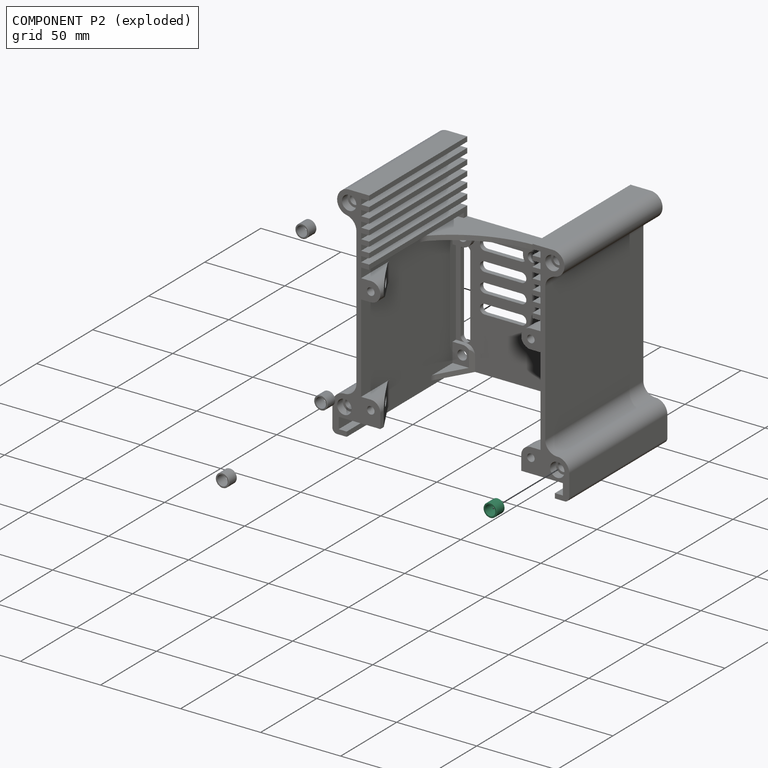
[diagram: component P2 — exploded]
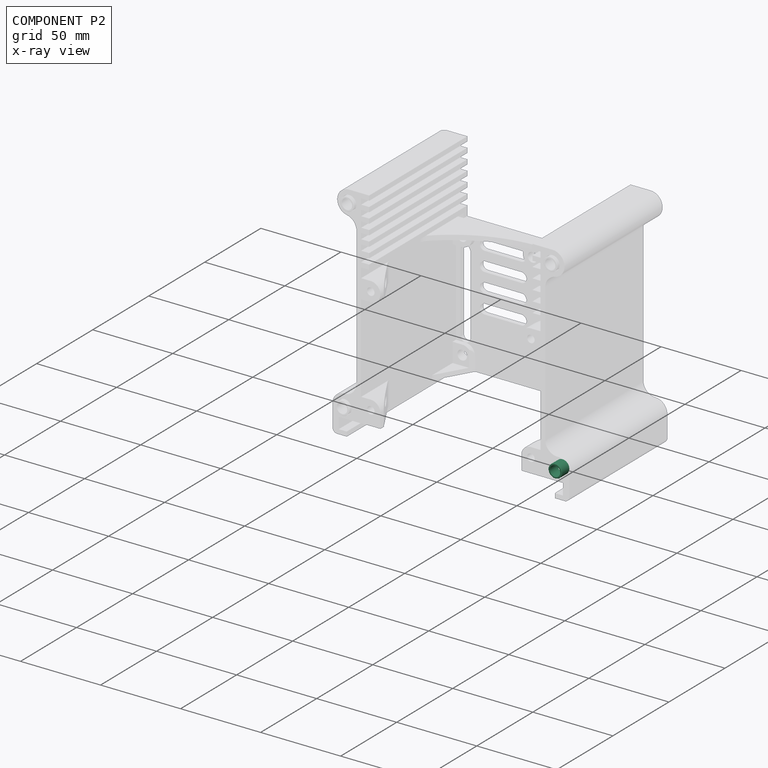
[diagram: component P2 — x-ray view]
COMPONENT P2 — same part as P0; its construction recipe is shown at P0.
Held by: CYLINDRICAL mate "Joint006" to P4.
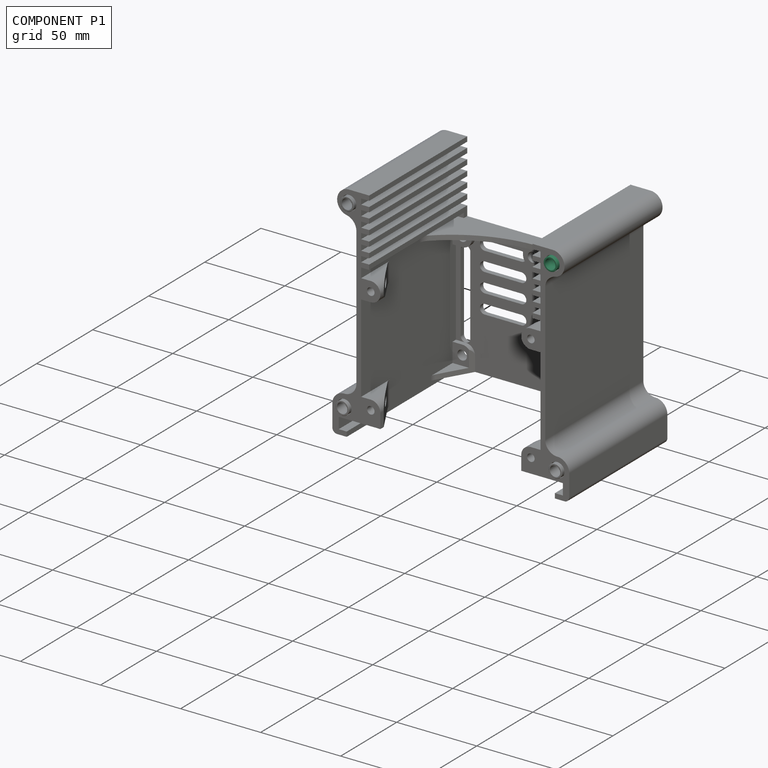
[diagram: component P1 — assembled]
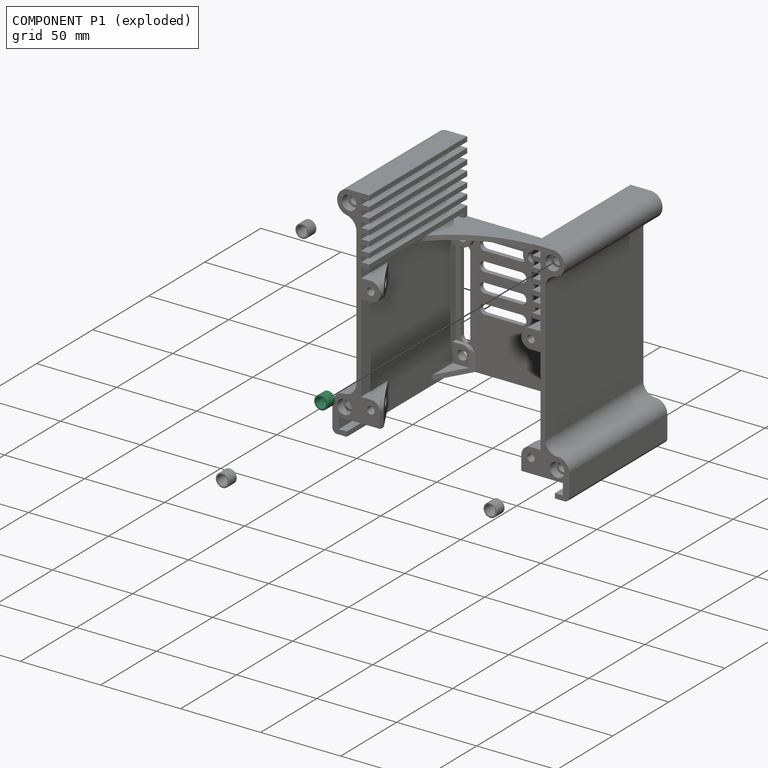
[diagram: component P1 — exploded]
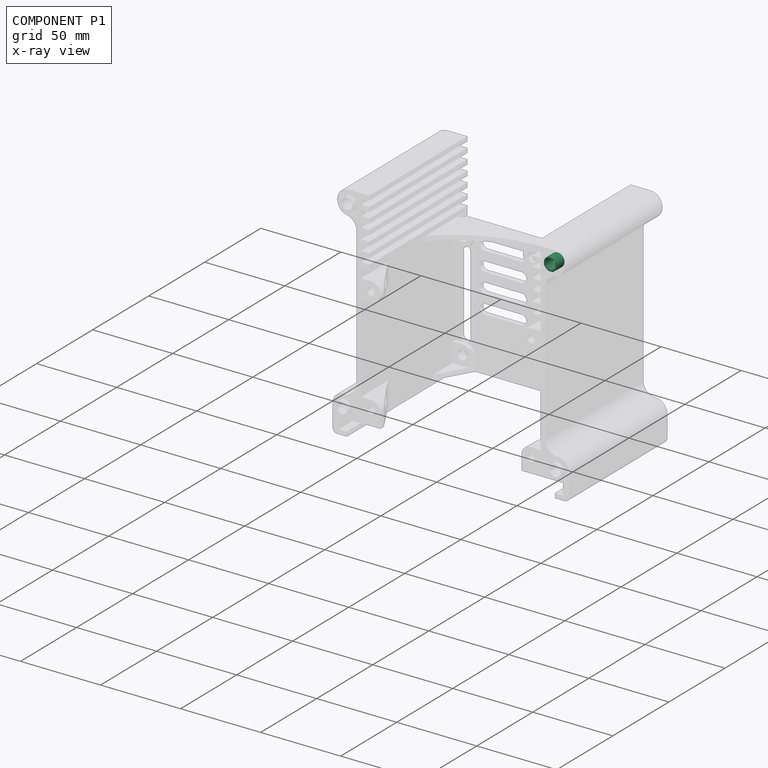
[diagram: component P1 — x-ray view]
COMPONENT P1 — same part as P0; its construction recipe is shown at P0.
Held by: CYLINDRICAL mate "Joint004" to P4.
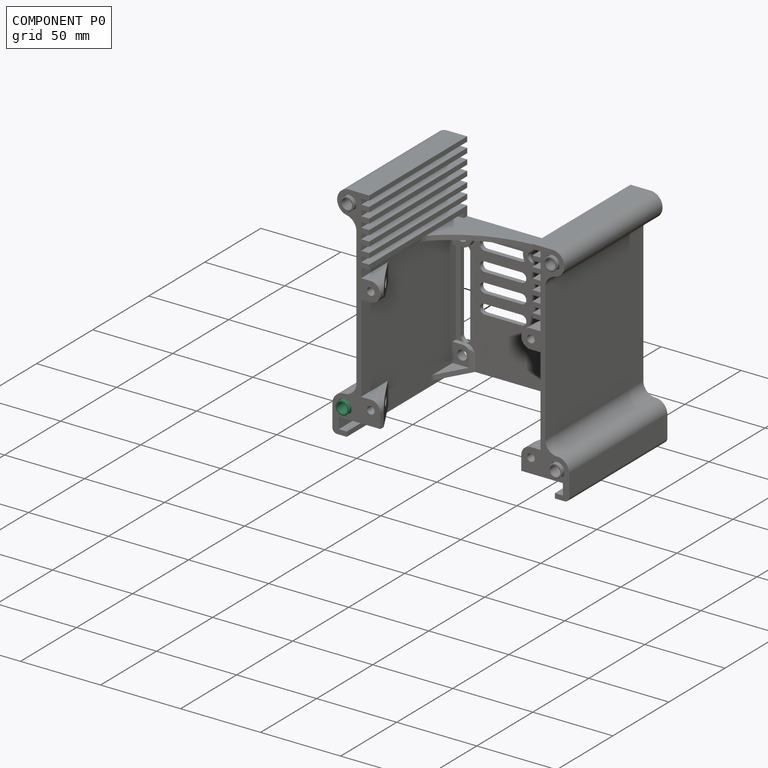
[diagram: component P0 — assembled]
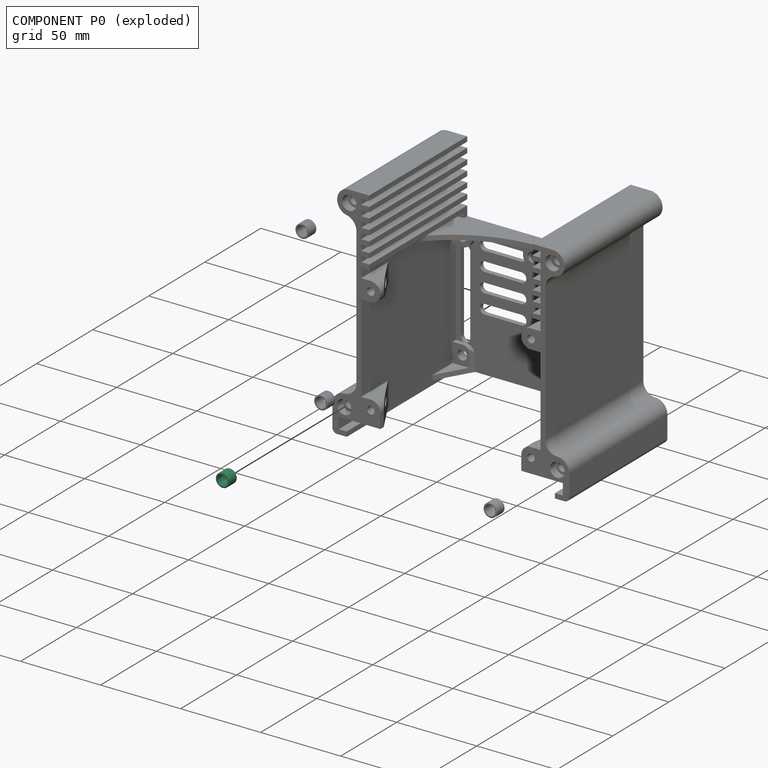
[diagram: component P0 — exploded]
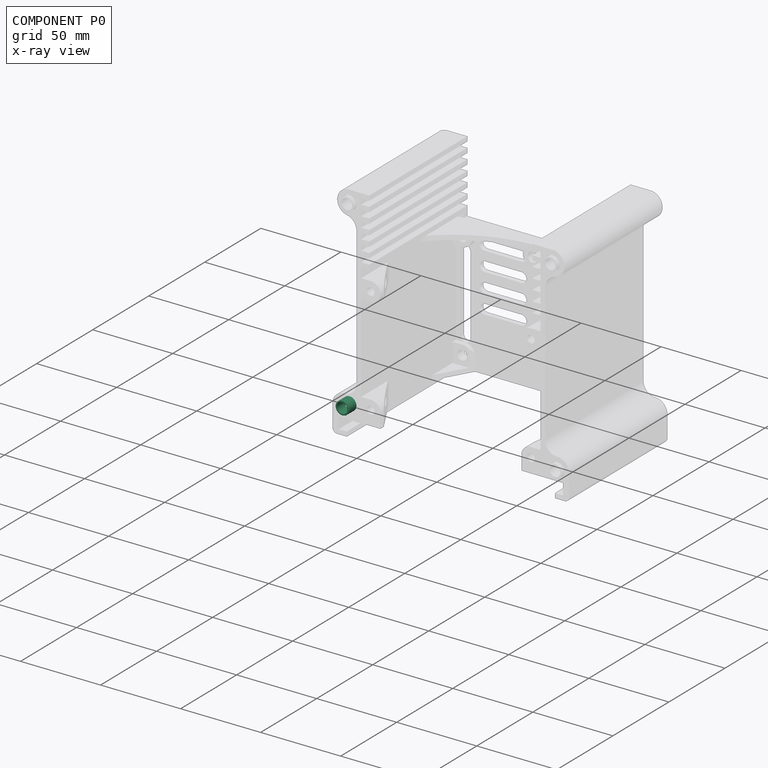
[diagram: component P0 — x-ray view]
COMPONENT P0 — recipe-attached ("Spacer", a linked part whose construction recipe lives in a companion FreeCAD document of the same project; that document's serialized recipe follows).
Held by: CYLINDRICAL mate "Joint008" to P4.
Construction recipe (the companion document, serialized — sketch geometry with constraints, then the solid features built on it; lengths are millimeters unless a unit is written):

FCSTD DOCUMENT  (FreeCAD 1.0R39319 (Git))
Label: Spacer
License: All rights reserved
LicenseURL: https://en.wikipedia.org/wiki/All_rights_reserved
objects: Sketcher::SketchObject×1, PartDesign::Pad×1, PartDesign::Chamfer×1, PartDesign::Body×1, PartDesign::CoordinateSystem×1, App::Part×1
note: 10 computed .brp shape members not serialized (recipe doc carries the construction recipe); baked Part::Feature solids carry a one-line shape summary decoded from their .brp

FEATURE [Sketcher::SketchObject] Sketch
  ArcFitTolerance = 1e-06
  AttachmentSupport = -> [XY_Plane001]
  FullyConstrained = true
  MakeInternals = false
  MapMode = 5
  sketch-geometry (2):
    g0: Circle CenterX=0 CenterY=0 CenterZ=0 NormalX=0 NormalY=0 NormalZ=1 AngleXU=0 Radius=4.25
    g1: Circle CenterX=0 CenterY=0 CenterZ=0 NormalX=0 NormalY=0 NormalZ=1 AngleXU=0 Radius=3.25
  constraints (4):
    c: Coincident(g0,g-1)
    c: Coincident(g1,g0)
    c: Diameter(g1) = 6.5
    c: Diameter(g0) = 8.5
FEATURE [PartDesign::Pad] Pad
  Direction = (0,0,1)
  Length = 7
  Length2 = 10
  Profile = -> Sketch
  ReferenceAxis = -> Sketch [N_Axis]
  Refine = true
  Suppressed = false
  Type = 0
FEATURE [PartDesign::Chamfer] Chamfer
  Angle = 45
  Base = -> Pad [Edge3,Edge2]
  BaseFeature = -> Pad
  ChamferType = 0
  FlipDirection = false
  Refine = true
  Size = 0.25
  Size2 = 1
  SupportTransform = false
  Suppressed = false
  UseAllEdges = false
FEATURE [PartDesign::Body] Body  label="Spacer001"
  AllowCompound = false
  Group = -> [Sketch,Pad,Chamfer]
  Origin = -> Origin001
  Tip = -> Chamfer
FEATURE [PartDesign::CoordinateSystem] LCS_1
  AttacherType = Attacher::AttachEngine3D
  AttachmentSupport = -> [Chamfer]
  MapMode = 11
  Placement = pos=(0,0,0) rot=(0,0,1;1.5708rad)
FEATURE [App::Part] Part  label="Spacer"
  Group = -> [Body,LCS_1]
  Origin = -> Origin
PROVENANCE & LICENSES
Assembly and component geometry: a FreeCAD (.FCStd) document from a public repository crawl; components, placements and joints were extracted with FreeCAD and each solid tessellated.
Construction recipes: the document's own serialized feature recipes (and, for linked parts, the recipes of companion documents from the same project).
License: gpl-2.0.
Joints: native FreeCAD joints and A2plus constraints are mapped to standard mate types.
Verification: 5 of this assembly's 5 components carry a construction recipe (5 from linked companion documents in the same project); the rest are geometry-only. Every component's tessellation passed the extraction mesh gates (mesh-volume checksum against the B-rep where available, bounding-box inflation <= 2%).
Renders: orthographic iso camera (az 35 / el 25); the floor grid conveys scale (grid pitch printed in each image; no ruler). In the exploded view each component is displaced by its stored offset vector: the offsets alone carry the explosion direction (mate normal/axis signs are not orientation cues and do not encode it), and separation distances are assigned per mate-chain, not proportionally to assembly-order depth.
